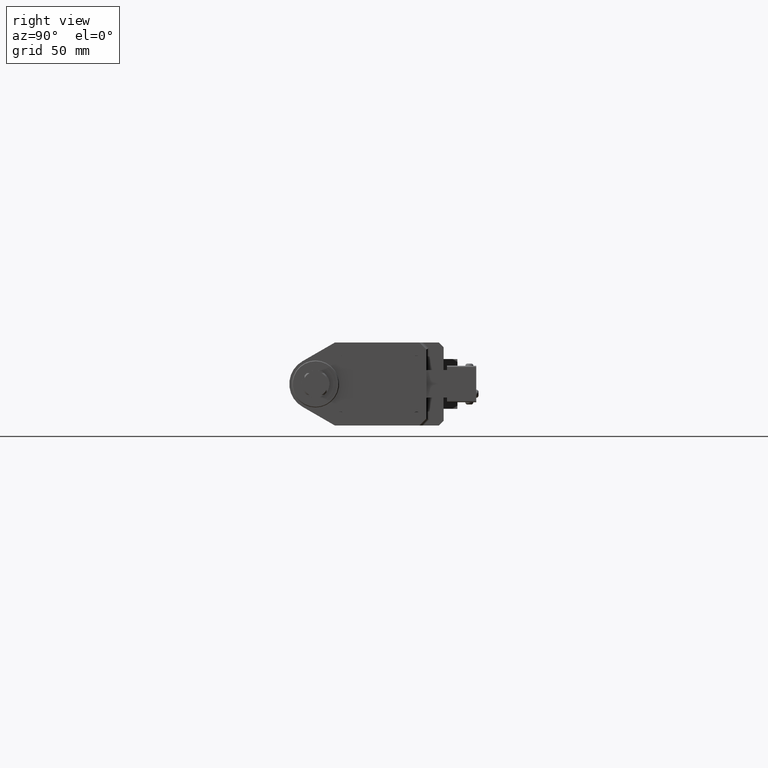
[diagram: clean part render]
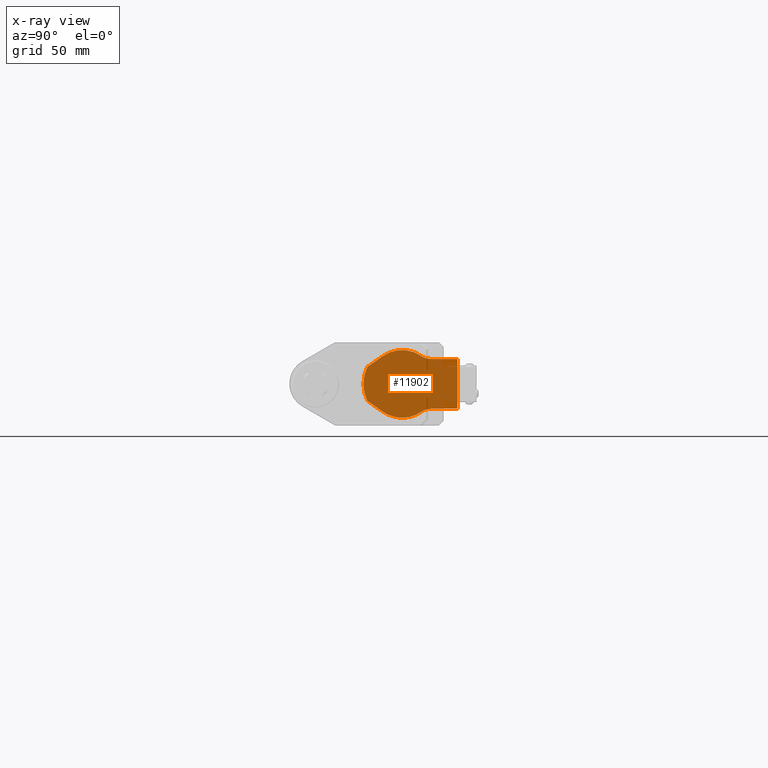
[diagram: x-ray — body ghosted, one internal face saturated and labeled with its STEP entity id]
A machine part, right view, then the same camera in x-ray: the body is ghosted and one INTERNAL B-rep face — a face not visible from any outside direction — is saturated and labeled: STEP entity #11902.
In plain terms, the highlighted planar face has unit normal (-1, 0, 0).
Its self-contained STEP definition (entity closure, byte-faithful):
#379 = VERTEX_POINT ( 'NONE', #12503 ) ;
#440 = AXIS2_PLACEMENT_3D ( 'NONE', #10432, #9078, #7698 ) ;
#454 = LINE ( 'NONE', #12513, #13298 ) ;
#614 = CIRCLE ( 'NONE', #8969, 24.50000000000000000 ) ;
#678 = DIRECTION ( 'NONE',  ( -1.000000000000000000, 0.0000000000000000000, 0.0000000000000000000 ) ) ;
#700 = VECTOR ( 'NONE', #5968, 1000.000000000000000 ) ;
#1146 = EDGE_CURVE ( 'NONE', #9377, #3038, #9680, .T. ) ;
#1314 = VECTOR ( 'NONE', #3256, 1000.000000000000100 ) ;
#1620 = VERTEX_POINT ( 'NONE', #11025 ) ;
#1892 = CARTESIAN_POINT ( 'NONE',  ( -439.0000000000000000, 62.59000000000001800, -24.50000000000000000 ) ) ;
#1923 = CARTESIAN_POINT ( 'NONE',  ( -439.0000000000000000, 37.43340951999884700, -12.29414313490433800 ) ) ;
#2142 = CARTESIAN_POINT ( 'NONE',  ( -439.0000000000000000, 76.54534960860682700, -20.13698630136987300 ) ) ;
#2462 = CARTESIAN_POINT ( 'NONE',  ( -439.0000000000000000, 48.53737730939951000, -20.06922508508038700 ) ) ;
#2562 = CIRCLE ( 'NONE', #3690, 24.49999999999999300 ) ;
#2835 = ORIENTED_EDGE ( 'NONE', *, *, #8655, .T. ) ;
#2912 = CARTESIAN_POINT ( 'NONE',  ( -439.0000000000000000, 102.5900000000000200, -18.00000000000000000 ) ) ;
#3038 = VERTEX_POINT ( 'NONE', #2142 ) ;
#3207 = FACE_OUTER_BOUND ( 'NONE', #12223, .T. ) ;
#3237 = EDGE_CURVE ( 'NONE', #3038, #8363, #614, .T. ) ;
#3256 = DIRECTION ( 'NONE',  ( 0.0000000000000000000, -0.8191520442889953500, 0.5735764363510409400 ) ) ;
#3278 = VERTEX_POINT ( 'NONE', #2462 ) ;
#3306 = CIRCLE ( 'NONE', #440, 24.50000000000000000 ) ;
#3317 = ORIENTED_EDGE ( 'NONE', *, *, #10188, .T. ) ;
#3372 = CARTESIAN_POINT ( 'NONE',  ( -439.0000000000000000, 76.54534960860682700, 20.13698630136986300 ) ) ;
#3427 = CARTESIAN_POINT ( 'NONE',  ( -439.0000000000000000, 62.59000000000001800, 0.0000000000000000000 ) ) ;
#3511 = DIRECTION ( 'NONE',  ( 0.0000000000000000000, 0.0000000000000000000, 1.000000000000000000 ) ) ;
#3690 = AXIS2_PLACEMENT_3D ( 'NONE', #3427, #678, #12725 ) ;
#3926 = DIRECTION ( 'NONE',  ( 0.0000000000000000000, 0.0000000000000000000, 1.000000000000000000 ) ) ;
#3968 = AXIS2_PLACEMENT_3D ( 'NONE', #12645, #9908, #8531 ) ;
#4223 = AXIS2_PLACEMENT_3D ( 'NONE', #6692, #5286, #3926 ) ;
#4393 = DIRECTION ( 'NONE',  ( 0.0000000000000000000, 0.0000000000000000000, 1.000000000000000000 ) ) ;
#4502 = ORIENTED_EDGE ( 'NONE', *, *, #1146, .T. ) ;
#4547 = CIRCLE ( 'NONE', #10516, 28.00000000000001100 ) ;
#4622 = CARTESIAN_POINT ( 'NONE',  ( -439.0000000000000000, 48.53737730939951000, -20.06922508508038700 ) ) ;
#4676 = ORIENTED_EDGE ( 'NONE', *, *, #10714, .T. ) ;
#4708 = EDGE_CURVE ( 'NONE', #10367, #379, #454, .T. ) ;
#4881 = DIRECTION ( 'NONE',  ( 1.000000000000000000, -0.0000000000000000000, -0.0000000000000000000 ) ) ;
#5244 = ORIENTED_EDGE ( 'NONE', *, *, #3237, .T. ) ;
#5286 = DIRECTION ( 'NONE',  ( -1.000000000000000000, 0.0000000000000000000, 0.0000000000000000000 ) ) ;
#5365 = CARTESIAN_POINT ( 'NONE',  ( -439.0000000000000000, 37.43340951999868300, 12.29414313490395800 ) ) ;
#5780 = DIRECTION ( 'NONE',  ( -1.000000000000000000, 0.0000000000000000000, 0.0000000000000000000 ) ) ;
#5968 = DIRECTION ( 'NONE',  ( -0.0000000000000000000, 1.000000000000000000, -0.0000000000000000000 ) ) ;
#5996 = LINE ( 'NONE', #4622, #1314 ) ;
#6166 = DIRECTION ( 'NONE',  ( -0.0000000000000000000, -1.000000000000000000, -1.806121526698408600E-016 ) ) ;
#6255 = CARTESIAN_POINT ( 'NONE',  ( -439.0000000000000000, 83.38062288629180300, 30.00000000000000000 ) ) ;
#6451 = CIRCLE ( 'NONE', #9380, 11.99999999999999600 ) ;
#6692 = CARTESIAN_POINT ( 'NONE',  ( -439.0000000000000000, 62.59000000000001800, 0.0000000000000000000 ) ) ;
#6861 = ORIENTED_EDGE ( 'NONE', *, *, #7433, .T. ) ;
#6979 = DIRECTION ( 'NONE',  ( -0.0000000000000000000, -0.0000000000000000000, -1.000000000000000000 ) ) ;
#7157 = ORIENTED_EDGE ( 'NONE', *, *, #7785, .T. ) ;
#7166 = CARTESIAN_POINT ( 'NONE',  ( -439.0000000000000000, 62.59000000000001800, 0.0000000000000000000 ) ) ;
#7349 = CARTESIAN_POINT ( 'NONE',  ( -439.0000000000000000, 102.5900000000000200, 18.00000000000000000 ) ) ;
#7433 = EDGE_CURVE ( 'NONE', #1620, #11589, #9734, .T. ) ;
#7550 = CARTESIAN_POINT ( 'NONE',  ( -439.0000000000000000, 83.38062288629180300, -18.00000000000000400 ) ) ;
#7567 = DIRECTION ( 'NONE',  ( 0.0000000000000000000, 0.0000000000000000000, 1.000000000000000000 ) ) ;
#7698 = DIRECTION ( 'NONE',  ( 0.0000000000000000000, 0.0000000000000000000, 1.000000000000000000 ) ) ;
#7785 = EDGE_CURVE ( 'NONE', #8363, #3278, #3306, .T. ) ;
#7878 = ORIENTED_EDGE ( 'NONE', *, *, #12291, .T. ) ;
#8073 = PLANE ( 'NONE',  #4223 ) ;
#8234 = EDGE_CURVE ( 'NONE', #11728, #12899, #6451, .T. ) ;
#8361 = CARTESIAN_POINT ( 'NONE',  ( -439.0000000000000000, 102.5900000000000200, -18.00000000000000000 ) ) ;
#8363 = VERTEX_POINT ( 'NONE', #1892 ) ;
#8462 = EDGE_CURVE ( 'NONE', #11589, #9377, #8943, .T. ) ;
#8531 = DIRECTION ( 'NONE',  ( 0.0000000000000000000, 0.0000000000000000000, -1.000000000000000000 ) ) ;
#8655 = EDGE_CURVE ( 'NONE', #3278, #11661, #5996, .T. ) ;
#8734 = LINE ( 'NONE', #7349, #700 ) ;
#8943 = LINE ( 'NONE', #7550, #12935 ) ;
#8960 = DIRECTION ( 'NONE',  ( -1.000000000000000000, 0.0000000000000000000, 0.0000000000000000000 ) ) ;
#8969 = AXIS2_PLACEMENT_3D ( 'NONE', #10317, #8960, #7567 ) ;
#9078 = DIRECTION ( 'NONE',  ( -1.000000000000000000, 0.0000000000000000000, 0.0000000000000000000 ) ) ;
#9377 = VERTEX_POINT ( 'NONE', #13176 ) ;
#9380 = AXIS2_PLACEMENT_3D ( 'NONE', #6255, #4881, #3511 ) ;
#9680 = CIRCLE ( 'NONE', #3968, 12.00000000000000000 ) ;
#9734 = LINE ( 'NONE', #8361, #11978 ) ;
#9908 = DIRECTION ( 'NONE',  ( 1.000000000000000000, -0.0000000000000000000, -0.0000000000000000000 ) ) ;
#10188 = EDGE_CURVE ( 'NONE', #11661, #10367, #4547, .T. ) ;
#10317 = CARTESIAN_POINT ( 'NONE',  ( -439.0000000000000000, 62.59000000000001800, 0.0000000000000000000 ) ) ;
#10367 = VERTEX_POINT ( 'NONE', #5365 ) ;
#10432 = CARTESIAN_POINT ( 'NONE',  ( -439.0000000000000000, 62.59000000000001800, 0.0000000000000000000 ) ) ;
#10516 = AXIS2_PLACEMENT_3D ( 'NONE', #7166, #5780, #4393 ) ;
#10702 = ORIENTED_EDGE ( 'NONE', *, *, #4708, .T. ) ;
#10714 = EDGE_CURVE ( 'NONE', #379, #11728, #2562, .T. ) ;
#10885 = CARTESIAN_POINT ( 'NONE',  ( -439.0000000000000000, 83.38062288629180300, 18.00000000000000000 ) ) ;
#11025 = CARTESIAN_POINT ( 'NONE',  ( -439.0000000000000000, 102.5900000000000200, 18.00000000000000000 ) ) ;
#11147 = DIRECTION ( 'NONE',  ( 0.0000000000000000000, 0.8191520442889865800, 0.5735764363510536000 ) ) ;
#11578 = ORIENTED_EDGE ( 'NONE', *, *, #8234, .T. ) ;
#11589 = VERTEX_POINT ( 'NONE', #2912 ) ;
#11661 = VERTEX_POINT ( 'NONE', #1923 ) ;
#11728 = VERTEX_POINT ( 'NONE', #3372 ) ;
#11837 = ORIENTED_EDGE ( 'NONE', *, *, #8462, .T. ) ;
#11902 = ADVANCED_FACE ( 'NONE', ( #3207 ), #8073, .T. ) ;
#11978 = VECTOR ( 'NONE', #6979, 1000.000000000000000 ) ;
#12223 = EDGE_LOOP ( 'NONE', ( #3317, #10702, #4676, #11578, #7878, #6861, #11837, #4502, #5244, #7157, #2835 ) ) ;
#12291 = EDGE_CURVE ( 'NONE', #12899, #1620, #8734, .T. ) ;
#12503 = CARTESIAN_POINT ( 'NONE',  ( -439.0000000000000000, 48.53737730939920400, 20.06922508508016600 ) ) ;
#12513 = CARTESIAN_POINT ( 'NONE',  ( -439.0000000000000000, 37.43340951999868300, 12.29414313490395800 ) ) ;
#12645 = CARTESIAN_POINT ( 'NONE',  ( -439.0000000000000000, 83.38062288629180300, -30.00000000000000400 ) ) ;
#12725 = DIRECTION ( 'NONE',  ( 0.0000000000000000000, 0.0000000000000000000, 1.000000000000000000 ) ) ;
#12899 = VERTEX_POINT ( 'NONE', #10885 ) ;
#12935 = VECTOR ( 'NONE', #6166, 1000.000000000000000 ) ;
#13176 = CARTESIAN_POINT ( 'NONE',  ( -439.0000000000000000, 83.38062288629180300, -18.00000000000000400 ) ) ;
#13298 = VECTOR ( 'NONE', #11147, 1000.000000000000000 ) ;